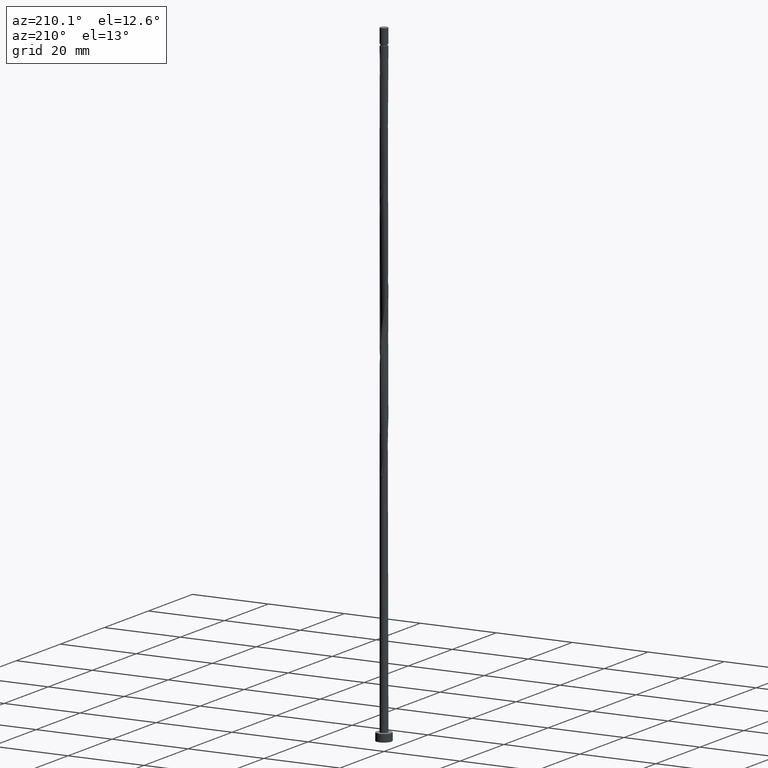
[diagram: clean part render]
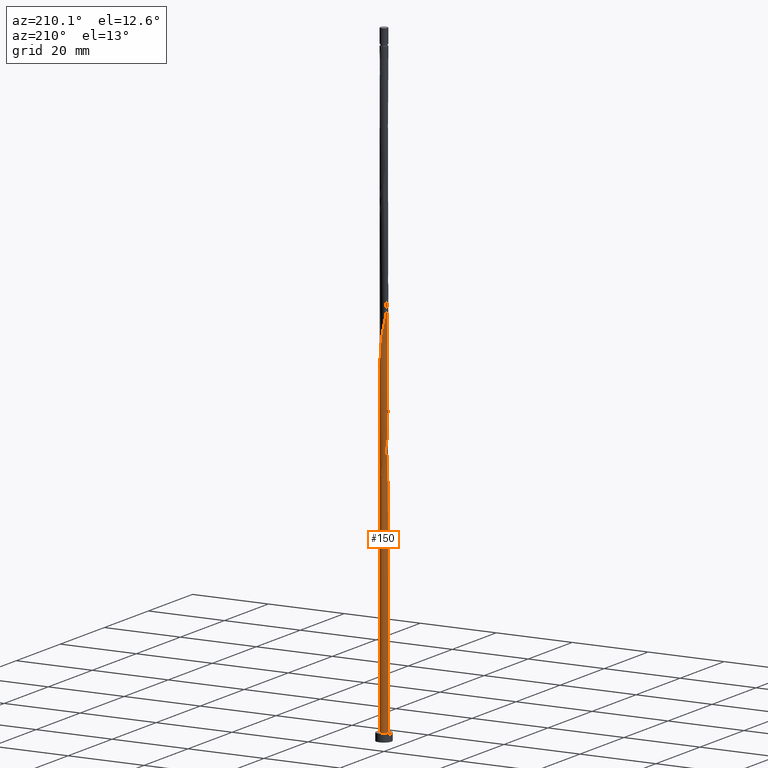
[diagram: same view with one face highlighted and labeled with its STEP entity id]
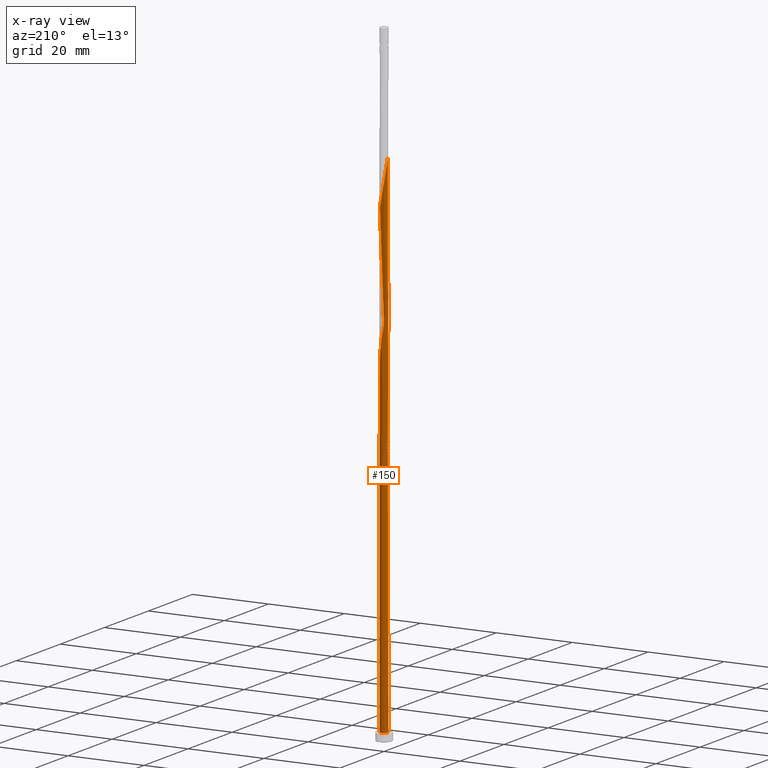
[diagram: x-ray of the same camera — body ghosted, the highlighted face saturated]
A machine part, auxiliary view. The second image highlights one B-rep face of the part: STEP entity #150.
The next image is the same camera in x-ray: the body ghosted, the highlighted face saturated — about 0% of this face is hidden behind the body in this view.
In plain terms, the highlighted cylindrical surface (bore or boss wall) has radius 1 mm, axis along (-0, -0, -1).
Its self-contained STEP definition (entity closure, byte-faithful):
#10 = CARTESIAN_POINT ( 'NONE',  ( -0.6620078475813414576, -0.7609717405145359770, 74.09675452254820982 ) ) ;
#18 = CARTESIAN_POINT ( 'NONE',  ( -0.06142585173357428124, -0.9981116494354770330, 77.56897674477042415 ) ) ;
#35 = CARTESIAN_POINT ( 'NONE',  ( 0.3280169350569777098, -0.9538014837673663981, 79.65231007810376695 ) ) ;
#42 = CARTESIAN_POINT ( 'NONE',  ( -0.4424964979548788313, 0.9063824962005119223, 65.76342118921486701 ) ) ;
#45 = CARTESIAN_POINT ( 'NONE',  ( -1.000000000000002220, 0.03074195165766805543, 136.0644686237544647 ) ) ;
#51 = DIRECTION ( 'NONE',  ( 1.000000000000000000, 0.000000000000000000, 0.000000000000000000 ) ) ;
#62 = CARTESIAN_POINT ( 'NONE',  ( 0.8951029700910980713, 0.4458594766673666387, 122.0134211892148812 ) ) ;
#68 = EDGE_CURVE ( 'NONE', #305, #135, #1122, .T. ) ;
#75 = CARTESIAN_POINT ( 'NONE',  ( -1.000000000000001998, -2.355221049870161332E-16, 136.2276323117825996 ) ) ;
#77 = CARTESIAN_POINT ( 'NONE',  ( -1.000000000000001998, -5.682438088575629046E-16, 69.56096564511589975 ) ) ;
#79 = CARTESIAN_POINT ( 'NONE',  ( -0.4458594766673669718, 0.8951029700910979603, 97.01342118921488122 ) ) ;
#91 = CARTESIAN_POINT ( 'NONE',  ( 0.9482036394194153228, -0.3176631206038548205, 117.8467545225482098 ) ) ;
#96 = ORIENTED_EDGE ( 'NONE', *, *, #1169, .T. ) ;
#107 = CARTESIAN_POINT ( 'NONE',  ( -1.006198516232635010, -0.06997803978568169214, 103.2634211892148812 ) ) ;
#111 = CARTESIAN_POINT ( 'NONE',  ( 0.6620078475813417906, 0.7609717405145356439, 90.76342118921483859 ) ) ;
#120 = CYLINDRICAL_SURFACE ( 'NONE', #1096, 1.000000000000000000 ) ;
#135 = VERTEX_POINT ( 'NONE', #240 ) ;
#140 = VECTOR ( 'NONE', #1477, 1000.000000000000000 ) ;
#143 = CARTESIAN_POINT ( 'NONE',  ( -0.3176631206038546540, -0.9482036394194153228, 76.18008785588152421 ) ) ;
#150 = ADVANCED_FACE ( 'NONE', ( #1253 ), #120, .T. ) ;
#151 = CARTESIAN_POINT ( 'NONE',  ( 0.000000000000000000, 0.000000000000000000, 166.5200000000000102 ) ) ;
#170 = ORIENTED_EDGE ( 'NONE', *, *, #257, .F. ) ;
#184 = CARTESIAN_POINT ( 'NONE',  ( 0.9981116494354770330, -0.06142585173357480860, 85.90231007810375274 ) ) ;
#193 = CARTESIAN_POINT ( 'NONE',  ( 0.9538014837673663981, 0.3280169350569775988, 87.98564341143712397 ) ) ;
#194 = CARTESIAN_POINT ( 'NONE',  ( 1.006198516232635010, 0.06997803978568087335, 119.9300878558815242 ) ) ;
#228 = CARTESIAN_POINT ( 'NONE',  ( -0.3280169350569778763, 0.9538014837673660651, 96.31897674477043836 ) ) ;
#234 = CARTESIAN_POINT ( 'NONE',  ( -0.9482036394194153228, 0.3176631206038545430, 67.84675452254820982 ) ) ;
#236 = CARTESIAN_POINT ( 'NONE',  ( 0.3176631206038548205, 0.9482036394194151008, 92.84675452254819561 ) ) ;
#240 = CARTESIAN_POINT ( 'NONE',  ( 1.000000000000000000, 0.000000000000000000, 2.000000000000000000 ) ) ;
#243 = CARTESIAN_POINT ( 'NONE',  ( 0.6623368793961458278, -0.7492061519980858231, 115.0689767447704526 ) ) ;
#244 = AXIS2_PLACEMENT_3D ( 'NONE', #1606, #354, #733 ) ;
#255 = CARTESIAN_POINT ( 'NONE',  ( -0.8364044564148300775, -0.5637020182777559008, 72.70786563365930988 ) ) ;
#256 = LINE ( 'NONE', #884, #1616 ) ;
#257 = EDGE_CURVE ( 'NONE', #816, #345, #941, .T. ) ;
#280 = CARTESIAN_POINT ( 'NONE',  ( 0.5522521727681103387, 0.8336771183575241162, 124.7911989669926527 ) ) ;
#289 = CARTESIAN_POINT ( 'NONE',  ( 0.6620078475813417906, 0.7609717405145356439, 124.0967545225481956 ) ) ;
#304 = CARTESIAN_POINT ( 'NONE',  ( -0.9981116494354770330, 0.06142585173357423267, 135.9023100781037385 ) ) ;
#305 = VERTEX_POINT ( 'NONE', #324 ) ;
#318 = CARTESIAN_POINT ( 'NONE',  ( -0.9800000000000008704, 0.1989974874213298883, 70.62453230032599549 ) ) ;
#319 = CARTESIAN_POINT ( 'NONE',  ( -0.1989974874213296663, 0.9800000000000006484, 62.29119896699264558 ) ) ;
#324 = CARTESIAN_POINT ( 'NONE',  ( -1.000000000000000000, 0.000000000000000000, 2.000000000000000000 ) ) ;
#334 = CARTESIAN_POINT ( 'NONE',  ( 0.8336771183575237831, -0.5522521727681104498, 116.4578656336593099 ) ) ;
#340 = CARTESIAN_POINT ( 'NONE',  ( -1.000000000000001998, 8.897501743954044594E-16, 71.68809895553606282 ) ) ;
#344 = AXIS2_PLACEMENT_3D ( 'NONE', #1460, #415, #51 ) ;
#345 = VERTEX_POINT ( 'NONE', #75 ) ;
#350 = CARTESIAN_POINT ( 'NONE',  ( -0.6623368793961461609, 0.7492061519980854900, 98.40231007810376695 ) ) ;
#354 = DIRECTION ( 'NONE',  ( 0.000000000000000000, 0.000000000000000000, 1.000000000000000000 ) ) ;
#356 = CARTESIAN_POINT ( 'NONE',  ( -0.6623368793961461609, 0.7492061519980854900, 65.06897674477042415 ) ) ;
#358 = EDGE_CURVE ( 'NONE', #345, #553, #1463, .T. ) ;
#366 = CARTESIAN_POINT ( 'NONE',  ( -0.9482036394194153228, 0.3176631206038545430, 101.1800878558815526 ) ) ;
#369 = CARTESIAN_POINT ( 'NONE',  ( -0.6620078475813411245, 0.7609717405145364211, 67.15231007810375274 ) ) ;
#378 = CARTESIAN_POINT ( 'NONE',  ( -1.000000000000001998, -5.682438088575629046E-16, 69.56096564511589975 ) ) ;
#387 = DIRECTION ( 'NONE',  ( -0.000000000000000000, -0.000000000000000000, -1.000000000000000000 ) ) ;
#415 = DIRECTION ( 'NONE',  ( 0.000000000000000000, 0.000000000000000000, 1.000000000000000000 ) ) ;
#430 = CARTESIAN_POINT ( 'NONE',  ( -0.9482036394194153228, 0.3176631206038545430, 134.5134211892148812 ) ) ;
#437 = CARTESIAN_POINT ( 'NONE',  ( 0.9800000000000006484, 0.1989974874213296385, 87.29119896699263847 ) ) ;
#438 = CARTESIAN_POINT ( 'NONE',  ( 0.3176631206038548205, 0.9482036394194151008, 126.1800878558815242 ) ) ;
#459 = CARTESIAN_POINT ( 'NONE',  ( 0.1989974874213296663, -0.9800000000000006484, 112.2911989669926527 ) ) ;
#469 = CARTESIAN_POINT ( 'NONE',  ( -0.06142585173357428124, -0.9981116494354770330, 110.9023100781037527 ) ) ;
#482 = CIRCLE ( 'NONE', #344, 1.000000000000000000 ) ;
#487 = CARTESIAN_POINT ( 'NONE',  ( -0.06997803978568077621, 1.006198516232635010, 94.93008785588152421 ) ) ;
#492 =( BOUNDED_CURVE ( )  B_SPLINE_CURVE ( 2, ( #617, #965, #587, #1118, #356, #1127, #862, #1363, #234, #1102, #1247, #1600, #77 ),
 .UNSPECIFIED., .F., .T. ) 
 B_SPLINE_CURVE_WITH_KNOTS ( ( 3, 2, 2, 2, 2, 2, 3 ),
 ( 0.000000000000000000, 0.01041666666666662966, 0.02083333333333337034, 0.03125000000000000000, 0.04166666666666662966, 0.05208333333333337034, 0.05453176698144616280 ),
 .UNSPECIFIED. ) 
 CURVE ( )  GEOMETRIC_REPRESENTATION_ITEM ( )  RATIONAL_B_SPLINE_CURVE ( ( 0.9090909090909247148, 0.9013135103398431935, 0.9090909090909247148, 0.9013135103398431935, 0.9090909090909247148, 0.9013135103398431935, 0.9090909090909247148, 0.9013135103398431935, 0.9090909090909247148, 0.9013135103398431935, 0.9090909090909247148, 0.9072628343904185488, 0.9062941362546450552 ) ) 
 REPRESENTATION_ITEM ( '' )  );
#495 = CARTESIAN_POINT ( 'NONE',  ( 0.3280169350569777098, -0.9538014837673663981, 112.9856434114371098 ) ) ;
#498 = DIRECTION ( 'NONE',  ( 0.000000000000000000, 0.000000000000000000, -1.000000000000000000 ) ) ;
#516 = CARTESIAN_POINT ( 'NONE',  ( 0.06997803978568141459, -1.006198516232635232, 78.26342118921485280 ) ) ;
#526 = CARTESIAN_POINT ( 'NONE',  ( -1.000000000000001776, -0.1005037815259249012, 70.09439201430517130 ) ) ;
#534 = CARTESIAN_POINT ( 'NONE',  ( 0.4458594766673666387, -0.8951029700910980713, 80.34675452254820982 ) ) ;
#543 = CARTESIAN_POINT ( 'NONE',  ( -0.3280169350569778763, 0.9538014837673660651, 129.6523100781037954 ) ) ;
#549 = EDGE_CURVE ( 'NONE', #624, #816, #492, .T. ) ;
#551 = CARTESIAN_POINT ( 'NONE',  ( 0.9981116494354770330, -0.06142585173357480860, 119.2356434114371240 ) ) ;
#553 = VERTEX_POINT ( 'NONE', #340 ) ;
#573 = CARTESIAN_POINT ( 'NONE',  ( -0.3176631206038542654, 0.9482036394194155449, 65.06897674477043836 ) ) ;
#578 = CARTESIAN_POINT ( 'NONE',  ( -0.9800000000000006484, -0.1989974874213297495, 103.9578656336593099 ) ) ;
#587 = CARTESIAN_POINT ( 'NONE',  ( -0.4458594766673669718, 0.8951029700910979603, 63.68008785588154552 ) ) ;
#598 = CARTESIAN_POINT ( 'NONE',  ( -1.000000000000001998, 8.897501743954044594E-16, 71.68809895553606282 ) ) ;
#603 = ORIENTED_EDGE ( 'NONE', *, *, #1008, .F. ) ;
#607 = CARTESIAN_POINT ( 'NONE',  ( -0.7492061519980854900, -0.6623368793961461609, 106.7356434114370956 ) ) ;
#611 = CARTESIAN_POINT ( 'NONE',  ( 0.5522521727681103387, 0.8336771183575241162, 91.45786563365933830 ) ) ;
#616 = CIRCLE ( 'NONE', #1174, 1.000000000000000000 ) ;
#617 = CARTESIAN_POINT ( 'NONE',  ( -0.1989974874213296663, 0.9800000000000006484, 62.29119896699264558 ) ) ;
#619 = CARTESIAN_POINT ( 'NONE',  ( -0.9538014837673663981, -0.3280169350569777098, 104.6523100781037527 ) ) ;
#622 = DIRECTION ( 'NONE',  ( -0.000000000000000000, -0.000000000000000000, -1.000000000000000000 ) ) ;
#624 = VERTEX_POINT ( 'NONE', #319 ) ;
#634 = CARTESIAN_POINT ( 'NONE',  ( 0.1989974874213301659, 0.9800000000000006484, 62.29119896699264558 ) ) ;
#651 = ORIENTED_EDGE ( 'NONE', *, *, #68, .T. ) ;
#665 = CARTESIAN_POINT ( 'NONE',  ( 0.7609717405145359770, -0.6620078475813414576, 82.43008785588153842 ) ) ;
#669 = EDGE_CURVE ( 'NONE', #135, #305, #482, .T. ) ;
#675 = CARTESIAN_POINT ( 'NONE',  ( 0.9482036394194153228, -0.3176631206038548205, 84.51342118921485280 ) ) ;
#676 = CARTESIAN_POINT ( 'NONE',  ( -0.9063824962005118113, 0.4424964979548789978, 133.8189767447704241 ) ) ;
#683 = CARTESIAN_POINT ( 'NONE',  ( 0.9900247826383187233, -0.1928297432528304767, 85.20786563365930988 ) ) ;
#685 = ORIENTED_EDGE ( 'NONE', *, *, #1309, .T. ) ;
#692 = CARTESIAN_POINT ( 'NONE',  ( 0.8951029700910980713, 0.4458594766673666387, 88.68008785588153842 ) ) ;
#720 = CARTESIAN_POINT ( 'NONE',  ( -0.5637020182777561228, 0.8364044564148298555, 97.70786563365930988 ) ) ;
#729 = CARTESIAN_POINT ( 'NONE',  ( -0.9981116494354770330, 0.06142585173357423267, 102.5689767447704241 ) ) ;
#733 = DIRECTION ( 'NONE',  ( 1.000000000000000000, 0.000000000000000000, 0.000000000000000000 ) ) ;
#737 = CARTESIAN_POINT ( 'NONE',  ( -0.7609717405145360880, 0.6620078475813411245, 99.09675452254823824 ) ) ;
#741 = CARTESIAN_POINT ( 'NONE',  ( -0.8364044564148300775, 0.5637020182777562338, 68.54119896699265269 ) ) ;
#743 = DIRECTION ( 'NONE',  ( -1.000000000000000000, 0.000000000000000000, 0.000000000000000000 ) ) ;
#756 = CARTESIAN_POINT ( 'NONE',  ( -0.7492061519980854900, -0.6623368793961461609, 73.40231007810373853 ) ) ;
#763 = CARTESIAN_POINT ( 'NONE',  ( -0.1928297432528298938, 0.9900247826383187233, 64.37453230032599549 ) ) ;
#783 = CARTESIAN_POINT ( 'NONE',  ( -0.1989974874213295830, 0.9800000000000006484, 128.9578656336593383 ) ) ;
#787 = CARTESIAN_POINT ( 'NONE',  ( -0.06142585173357402450, 0.9981116494354772550, 63.68008785588154552 ) ) ;
#808 = CARTESIAN_POINT ( 'NONE',  ( 0.4424964979548791644, 0.9063824962005117003, 125.4856434114370813 ) ) ;
#816 = VERTEX_POINT ( 'NONE', #1293 ) ;
#819 = CARTESIAN_POINT ( 'NONE',  ( -0.9538014837673660651, 0.3280169350569779319, 69.93008785588155263 ) ) ;
#825 =( BOUNDED_CURVE ( )  B_SPLINE_CURVE ( 2, ( #598, #1452, #318, #819, #1369, #741, #1509, #369, #873, #42, #573, #763, #787, #876, #949 ),
 .UNSPECIFIED., .F., .T. ) 
 B_SPLINE_CURVE_WITH_KNOTS ( ( 3, 2, 2, 2, 2, 2, 2, 3 ),
 ( 0.9295317669814462391, 0.9375000000000000000, 0.9479166666666666297, 0.9583333333333333703, 0.9687500000000000000, 0.9791666666666666297, 0.9895833333333333703, 1.000000000000000000 ),
 .UNSPECIFIED. ) 
 CURVE ( )  GEOMETRIC_REPRESENTATION_ITEM ( )  RATIONAL_B_SPLINE_CURVE ( ( 0.9062941362546348412, 0.9031415850403390344, 0.9090909090909143897, 0.9013135103398328685, 0.9090909090909143897, 0.9013135103398328685, 0.9090909090909143897, 0.9013135103398328685, 0.9090909090909143897, 0.9013135103398328685, 0.9090909090909143897, 0.9013135103398328685, 0.9090909090909143897, 0.9013135103398328685, 0.9090909090909143897 ) ) 
 REPRESENTATION_ITEM ( '' )  );
#837 = CARTESIAN_POINT ( 'NONE',  ( 0.9063824962005117003, -0.4424964979548791644, 117.1523100781037527 ) ) ;
#848 = CARTESIAN_POINT ( 'NONE',  ( 0.1928297432528305044, 0.9900247826383187233, 93.54119896699263847 ) ) ;
#857 = CARTESIAN_POINT ( 'NONE',  ( -0.9900247826383189453, 0.1928297432528299216, 101.8745323003259955 ) ) ;
#862 = CARTESIAN_POINT ( 'NONE',  ( -0.8336771183575241162, 0.5522521727681100057, 66.45786563365930988 ) ) ;
#864 = CARTESIAN_POINT ( 'NONE',  ( -0.8336771183575241162, 0.5522521727681100057, 99.79119896699263847 ) ) ;
#873 = CARTESIAN_POINT ( 'NONE',  ( -0.5522521727681101167, 0.8336771183575241162, 66.45786563365932409 ) ) ;
#876 = CARTESIAN_POINT ( 'NONE',  ( 0.06997803978568181704, 1.006198516232635010, 62.98564341143708845 ) ) ;
#883 = CARTESIAN_POINT ( 'NONE',  ( -0.9538014837673663981, -0.3280169350569777098, 71.31897674477040994 ) ) ;
#884 = CARTESIAN_POINT ( 'NONE',  ( -1.000000000000000000, 0.000000000000000000, 166.5200000000000102 ) ) ;
#889 = CARTESIAN_POINT ( 'NONE',  ( -0.4424964979548791644, -0.9063824962005117003, 75.48564341143710976 ) ) ;
#916 = CARTESIAN_POINT ( 'NONE',  ( 0.06142585173357487799, 0.9981116494354770330, 127.5689767447704526 ) ) ;
#918 = ORIENTED_EDGE ( 'NONE', *, *, #549, .F. ) ;
#932 = CARTESIAN_POINT ( 'NONE',  ( 0.7492061519980859341, 0.6623368793961456058, 123.4023100781037812 ) ) ;
#941 =( BOUNDED_CURVE ( )  B_SPLINE_CURVE ( 2, ( #378, #526, #1272, #883, #1386, #255, #756, #10, #1024, #889, #143, #1394, #18, #516, #1554, #35, #534, #1048, #1296, #665, #1065, #1056, #675, #683, #184, #1075, #437, #193, #692, #1473, #998, #111, #611, #1124, #236, #848, #1241, #487, #1497, #228, #79, #720, #350, #737, #864, #1104, #366, #857, #729, #107, #578, #619, #1374, #967, #607, #1365, #1593, #1623, #1249, #1479, #469, #1348, #459, #495, #1340, #1505, #243, #1467, #334, #837, #91, #1602, #551, #194, #1076, #1306, #62, #1049, #932, #289, #280, #808, #438, #1206, #916, #1421, #783, #543, #1578, #942, #1438, #1289, #1430, #676, #430, #1448, #304, #45, #1315 ),
 .UNSPECIFIED., .F., .T. ) 
 B_SPLINE_CURVE_WITH_KNOTS ( ( 3, 2, 2, 2, 2, 2, 2, 2, 2, 2, 2, 2, 2, 2, 2, 2, 2, 2, 2, 2, 2, 2, 2, 2, 2, 2, 2, 2, 2, 2, 2, 2, 2, 2, 2, 2, 2, 2, 2, 2, 2, 2, 2, 2, 2, 2, 2, 2, 2, 3 ),
 ( 0.05453176698144616280, 0.06250000000000000000, 0.07291666666666662966, 0.08333333333333337034, 0.09375000000000000000, 0.1041666666666666297, 0.1145833333333333703, 0.1250000000000000000, 0.1354166666666666297, 0.1458333333333333703, 0.1562500000000000000, 0.1666666666666666297, 0.1770833333333333703, 0.1875000000000000000, 0.1979166666666666297, 0.2083333333333333703, 0.2187500000000000000, 0.2291666666666666297, 0.2395833333333333703, 0.2500000000000000000, 0.2604166666666666297, 0.2708333333333333703, 0.2812500000000000000, 0.2916666666666666297, 0.3020833333333333703, 0.3125000000000000000, 0.3229166666666666297, 0.3333333333333333703, 0.3437500000000000000, 0.3541666666666666297, 0.3645833333333333703, 0.3750000000000000000, 0.3854166666666666297, 0.3958333333333333703, 0.4062500000000000000, 0.4166666666666666297, 0.4270833333333333703, 0.4375000000000000000, 0.4479166666666666297, 0.4583333333333333703, 0.4687500000000000000, 0.4791666666666666297, 0.4895833333333333703, 0.5000000000000000000, 0.5104166666666667407, 0.5208333333333332593, 0.5312500000000000000, 0.5416666666666667407, 0.5520833333333332593, 0.5545317669814462391 ),
 .UNSPECIFIED. ) 
 CURVE ( )  GEOMETRIC_REPRESENTATION_ITEM ( )  RATIONAL_B_SPLINE_CURVE ( ( 0.9062941362546450552, 0.9031415850403492485, 0.9090909090909247148, 0.9013135103398431935, 0.9090909090909247148, 0.9013135103398431935, 0.9090909090909247148, 0.9013135103398431935, 0.9090909090909247148, 0.9013135103398431935, 0.9090909090909247148, 0.9013135103398431935, 0.9090909090909247148, 0.9013135103398431935, 0.9090909090909247148, 0.9013135103398431935, 0.9090909090909247148, 0.9013135103398431935, 0.9090909090909247148, 0.9013135103398431935, 0.9090909090909247148, 0.9013135103398431935, 0.9090909090909247148, 0.9013135103398431935, 0.9090909090909247148, 0.9013135103398431935, 0.9090909090909247148, 0.9013135103398431935, 0.9090909090909247148, 0.9013135103398431935, 0.9090909090909247148, 0.9013135103398431935, 0.9090909090909247148, 0.9013135103398431935, 0.9090909090909247148, 0.9013135103398431935, 0.9090909090909247148, 0.9013135103398431935, 0.9090909090909247148, 0.9013135103398431935, 0.9090909090909247148, 0.9013135103398431935, 0.9090909090909247148, 0.9013135103398431935, 0.9090909090909247148, 0.9013135103398431935, 0.9090909090909247148, 0.9013135103398431935, 0.9090909090909247148, 0.9013135103398431935, 0.9090909090909247148, 0.9013135103398431935, 0.9090909090909247148, 0.9013135103398431935, 0.9090909090909247148, 0.9013135103398431935, 0.9090909090909247148, 0.9013135103398431935, 0.9090909090909247148, 0.9013135103398431935, 0.9090909090909247148, 0.9013135103398431935, 0.9090909090909247148, 0.9013135103398431935, 0.9090909090909247148, 0.9013135103398431935, 0.9090909090909247148, 0.9013135103398431935, 0.9090909090909247148, 0.9013135103398431935, 0.9090909090909247148, 0.9013135103398431935, 0.9090909090909247148, 0.9013135103398431935, 0.9090909090909247148, 0.9013135103398431935, 0.9090909090909247148, 0.9013135103398431935, 0.9090909090909247148, 0.9013135103398431935, 0.9090909090909247148, 0.9013135103398431935, 0.9090909090909247148, 0.9013135103398431935, 0.9090909090909247148, 0.9013135103398431935, 0.9090909090909247148, 0.9013135103398431935, 0.9090909090909247148, 0.9013135103398431935, 0.9090909090909247148, 0.9013135103398431935, 0.9090909090909247148, 0.9013135103398431935, 0.9090909090909247148, 0.9013135103398431935, 0.9090909090909247148, 0.9072628343904184378, 0.9062941362546450552 ) ) 
 REPRESENTATION_ITEM ( '' )  );
#942 = CARTESIAN_POINT ( 'NONE',  ( -0.5637020182777561228, 0.8364044564148298555, 131.0411989669926527 ) ) ;
#949 = CARTESIAN_POINT ( 'NONE',  ( 0.1989974874213301659, 0.9800000000000006484, 62.29119896699264558 ) ) ;
#965 = CARTESIAN_POINT ( 'NONE',  ( -0.3280169350569778763, 0.9538014837673660651, 62.98564341143710266 ) ) ;
#967 = CARTESIAN_POINT ( 'NONE',  ( -0.8364044564148300775, -0.5637020182777559008, 106.0411989669926527 ) ) ;
#998 = CARTESIAN_POINT ( 'NONE',  ( 0.7492061519980859341, 0.6623368793961456058, 90.06897674477042415 ) ) ;
#1008 = EDGE_CURVE ( 'NONE', #553, #1221, #825, .T. ) ;
#1010 = DIRECTION ( 'NONE',  ( -1.000000000000000000, 0.000000000000000000, 0.000000000000000000 ) ) ;
#1024 = CARTESIAN_POINT ( 'NONE',  ( -0.5522521727681102277, -0.8336771183575241162, 74.79119896699263847 ) ) ;
#1048 = CARTESIAN_POINT ( 'NONE',  ( 0.5637020182777557897, -0.8364044564148302996, 81.04119896699265269 ) ) ;
#1049 = CARTESIAN_POINT ( 'NONE',  ( 0.8364044564148302996, 0.5637020182777557897, 122.7078656336593241 ) ) ;
#1056 = CARTESIAN_POINT ( 'NONE',  ( 0.9063824962005117003, -0.4424964979548791644, 83.81897674477042415 ) ) ;
#1065 = CARTESIAN_POINT ( 'NONE',  ( 0.8336771183575237831, -0.5522521727681104498, 83.12453230032598128 ) ) ;
#1075 = CARTESIAN_POINT ( 'NONE',  ( 1.006198516232635010, 0.06997803978568087335, 86.59675452254818140 ) ) ;
#1076 = CARTESIAN_POINT ( 'NONE',  ( 0.9800000000000006484, 0.1989974874213296385, 120.6245323003259955 ) ) ;
#1082 = EDGE_LOOP ( 'NONE', ( #1566, #170, #96, #651, #1321, #1464, #918, #685, #603 ) ) ;
#1096 = AXIS2_PLACEMENT_3D ( 'NONE', #151, #387, #743 ) ;
#1102 = CARTESIAN_POINT ( 'NONE',  ( -0.9900247826383189453, 0.1928297432528299216, 68.54119896699265269 ) ) ;
#1104 = CARTESIAN_POINT ( 'NONE',  ( -0.9063824962005118113, 0.4424964979548789978, 100.4856434114370956 ) ) ;
#1118 = CARTESIAN_POINT ( 'NONE',  ( -0.5637020182777561228, 0.8364044564148298555, 64.37453230032598128 ) ) ;
#1122 = CIRCLE ( 'NONE', #244, 1.000000000000000000 ) ;
#1124 = CARTESIAN_POINT ( 'NONE',  ( 0.4424964979548791644, 0.9063824962005117003, 92.15231007810375274 ) ) ;
#1127 = CARTESIAN_POINT ( 'NONE',  ( -0.7609717405145360880, 0.6620078475813411245, 65.76342118921486701 ) ) ;
#1169 = EDGE_CURVE ( 'NONE', #816, #305, #256, .T. ) ;
#1174 = AXIS2_PLACEMENT_3D ( 'NONE', #1382, #498, #1010 ) ;
#1206 = CARTESIAN_POINT ( 'NONE',  ( 0.1928297432528305044, 0.9900247826383187233, 126.8745323003259955 ) ) ;
#1221 = VERTEX_POINT ( 'NONE', #634 ) ;
#1239 = CARTESIAN_POINT ( 'NONE',  ( -1.000000000000000000, 0.000000000000000000, 166.5200000000000102 ) ) ;
#1241 = CARTESIAN_POINT ( 'NONE',  ( 0.06142585173357487799, 0.9981116494354770330, 94.23564341143708134 ) ) ;
#1247 = CARTESIAN_POINT ( 'NONE',  ( -0.9981116494354770330, 0.06142585173357423267, 69.23564341143706713 ) ) ;
#1249 = CARTESIAN_POINT ( 'NONE',  ( -0.3176631206038546540, -0.9482036394194153228, 109.5134211892148528 ) ) ;
#1253 = FACE_OUTER_BOUND ( 'NONE', #1082, .T. ) ;
#1272 = CARTESIAN_POINT ( 'NONE',  ( -0.9800000000000006484, -0.1989974874213297495, 70.62453230032596707 ) ) ;
#1289 = CARTESIAN_POINT ( 'NONE',  ( -0.7609717405145360880, 0.6620078475813411245, 132.4300878558815384 ) ) ;
#1293 = CARTESIAN_POINT ( 'NONE',  ( -1.000000000000001998, -5.682438088575629046E-16, 69.56096564511589975 ) ) ;
#1296 = CARTESIAN_POINT ( 'NONE',  ( 0.6623368793961458278, -0.7492061519980858231, 81.73564341143708134 ) ) ;
#1306 = CARTESIAN_POINT ( 'NONE',  ( 0.9538014837673663981, 0.3280169350569775988, 121.3189767447704241 ) ) ;
#1309 = EDGE_CURVE ( 'NONE', #624, #1221, #616, .T. ) ;
#1315 = CARTESIAN_POINT ( 'NONE',  ( -1.000000000000001998, -2.355221049870161332E-16, 136.2276323117825996 ) ) ;
#1321 = ORIENTED_EDGE ( 'NONE', *, *, #669, .T. ) ;
#1340 = CARTESIAN_POINT ( 'NONE',  ( 0.4458594766673666387, -0.8951029700910980713, 113.6800878558815526 ) ) ;
#1348 = CARTESIAN_POINT ( 'NONE',  ( 0.06997803978568141459, -1.006198516232635232, 111.5967545225482382 ) ) ;
#1363 = CARTESIAN_POINT ( 'NONE',  ( -0.9063824962005118113, 0.4424964979548789978, 67.15231007810373853 ) ) ;
#1365 = CARTESIAN_POINT ( 'NONE',  ( -0.6620078475813414576, -0.7609717405145359770, 107.4300878558815526 ) ) ;
#1369 = CARTESIAN_POINT ( 'NONE',  ( -0.8951029700910980713, 0.4458594766673671939, 69.23564341143709555 ) ) ;
#1374 = CARTESIAN_POINT ( 'NONE',  ( -0.8951029700910979603, -0.4458594766673668608, 105.3467545225482240 ) ) ;
#1382 = CARTESIAN_POINT ( 'NONE',  ( 0.000000000000000000, 0.000000000000000000, 62.29119896699264558 ) ) ;
#1386 = CARTESIAN_POINT ( 'NONE',  ( -0.8951029700910979603, -0.4458594766673668608, 72.01342118921486701 ) ) ;
#1394 = CARTESIAN_POINT ( 'NONE',  ( -0.1928297432528299771, -0.9900247826383189453, 76.87453230032596707 ) ) ;
#1421 = CARTESIAN_POINT ( 'NONE',  ( -0.06997803978568077621, 1.006198516232635010, 128.2634211892148528 ) ) ;
#1430 = CARTESIAN_POINT ( 'NONE',  ( -0.8336771183575241162, 0.5522521727681100057, 133.1245323003259671 ) ) ;
#1438 = CARTESIAN_POINT ( 'NONE',  ( -0.6623368793961461609, 0.7492061519980854900, 131.7356434114370813 ) ) ;
#1448 = CARTESIAN_POINT ( 'NONE',  ( -0.9900247826383189453, 0.1928297432528299216, 135.2078656336593383 ) ) ;
#1452 = CARTESIAN_POINT ( 'NONE',  ( -1.000000000000001554, 0.1005037815259261502, 71.15467258634677705 ) ) ;
#1460 = CARTESIAN_POINT ( 'NONE',  ( 0.000000000000000000, 0.000000000000000000, 2.000000000000000000 ) ) ;
#1463 = LINE ( 'NONE', #1239, #140 ) ;
#1464 = ORIENTED_EDGE ( 'NONE', *, *, #1169, .F. ) ;
#1467 = CARTESIAN_POINT ( 'NONE',  ( 0.7609717405145359770, -0.6620078475813414576, 115.7634211892148812 ) ) ;
#1473 = CARTESIAN_POINT ( 'NONE',  ( 0.8364044564148302996, 0.5637020182777557897, 89.37453230032600970 ) ) ;
#1477 = DIRECTION ( 'NONE',  ( -0.000000000000000000, -0.000000000000000000, -1.000000000000000000 ) ) ;
#1479 = CARTESIAN_POINT ( 'NONE',  ( -0.1928297432528299771, -0.9900247826383189453, 110.2078656336593099 ) ) ;
#1497 = CARTESIAN_POINT ( 'NONE',  ( -0.1989974874213295830, 0.9800000000000006484, 95.62453230032598128 ) ) ;
#1505 = CARTESIAN_POINT ( 'NONE',  ( 0.5637020182777557897, -0.8364044564148302996, 114.3745323003259813 ) ) ;
#1509 = CARTESIAN_POINT ( 'NONE',  ( -0.7492061519980853790, 0.6623368793961462719, 67.84675452254822403 ) ) ;
#1554 = CARTESIAN_POINT ( 'NONE',  ( 0.1989974874213296663, -0.9800000000000006484, 78.95786563365930988 ) ) ;
#1566 = ORIENTED_EDGE ( 'NONE', *, *, #358, .F. ) ;
#1578 = CARTESIAN_POINT ( 'NONE',  ( -0.4458594766673669718, 0.8951029700910979603, 130.3467545225481956 ) ) ;
#1593 = CARTESIAN_POINT ( 'NONE',  ( -0.5522521727681102277, -0.8336771183575241162, 108.1245323003260239 ) ) ;
#1600 = CARTESIAN_POINT ( 'NONE',  ( -1.000000000000001998, 0.03074195165767007465, 69.39780195708775068 ) ) ;
#1602 = CARTESIAN_POINT ( 'NONE',  ( 0.9900247826383187233, -0.1928297432528304767, 118.5411989669926243 ) ) ;
#1606 = CARTESIAN_POINT ( 'NONE',  ( 0.000000000000000000, 0.000000000000000000, 2.000000000000000000 ) ) ;
#1616 = VECTOR ( 'NONE', #622, 1000.000000000000000 ) ;
#1623 = CARTESIAN_POINT ( 'NONE',  ( -0.4424964979548791644, -0.9063824962005117003, 108.8189767447704241 ) ) ;